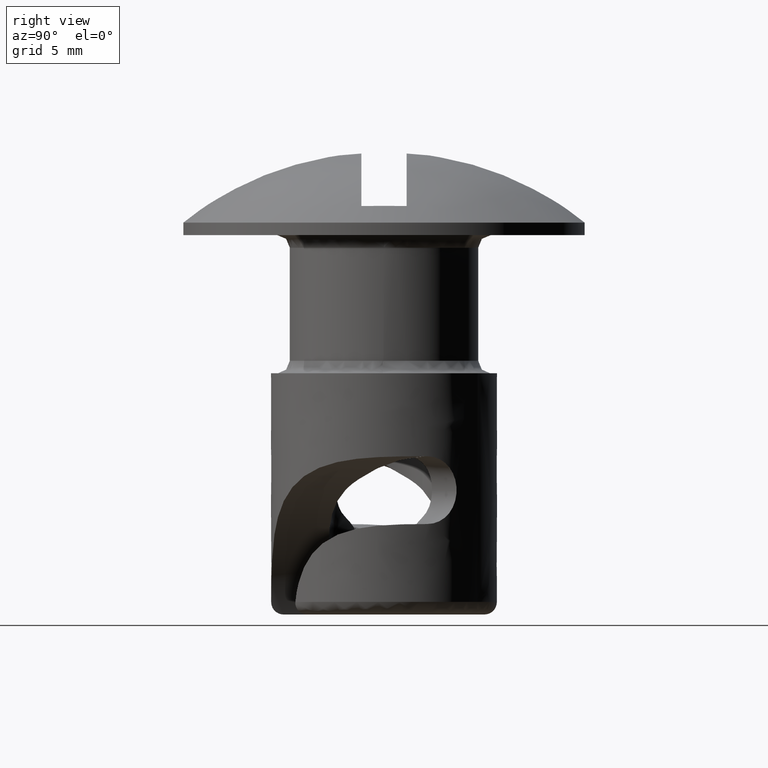
[diagram: clean part render]
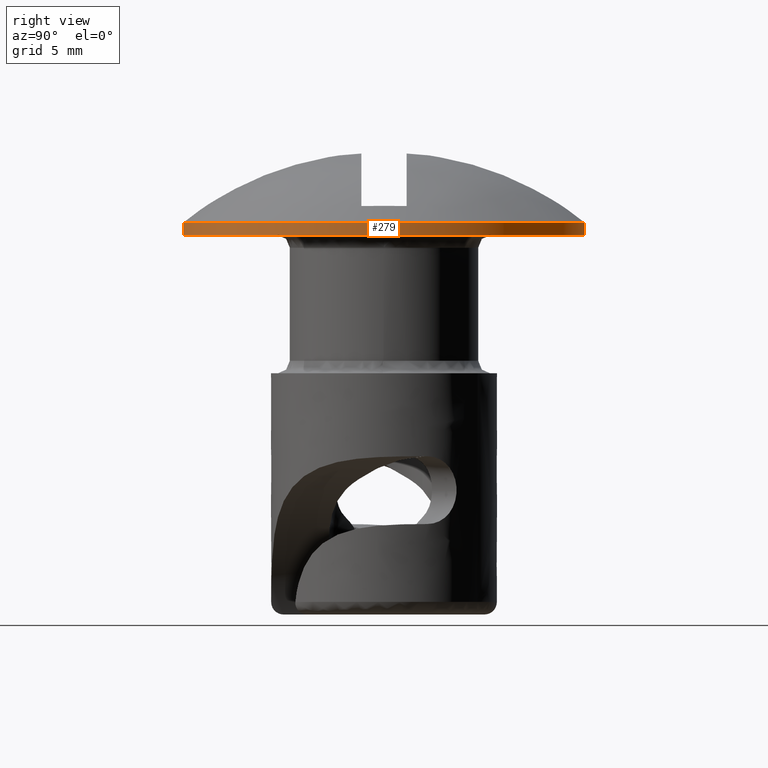
[diagram: same view with one face highlighted and labeled with its STEP entity id]
A machine part, right view. The second image highlights one B-rep face of the part: STEP entity #279.
In plain terms, the highlighted face is a freeform B-spline surface patch.
Its self-contained STEP definition (entity closure, byte-faithful):
#140=CARTESIAN_POINT('',(0.488382248304818,-7.985078758503498,0.500000000000000));
#141=VERTEX_POINT('',#140);
#159=CARTESIAN_POINT('',(8.0,0.0,0.500000000000000));
#160=VERTEX_POINT('',#159);
#161=CARTESIAN_POINT('',(8.0,0.0,0.500000000000000));
#162=CARTESIAN_POINT('',(7.999999999999930,-7.525654264779717,0.500000000000000));
#163=CARTESIAN_POINT('',(0.488382248304818,-7.985078758503498,0.500000000000000));
#171=(BOUNDED_CURVE()B_SPLINE_CURVE(2,(#161,#162,#163),.UNSPECIFIED.,.F.,.U.)B_SPLINE_CURVE_WITH_KNOTS((3,3),(0.500000000000000,0.739333093362728),.UNSPECIFIED.)CURVE()GEOMETRIC_REPRESENTATION_ITEM()RATIONAL_B_SPLINE_CURVE((1.0,0.719603839665640,0.976072322690110))REPRESENTATION_ITEM(''));
#172=EDGE_CURVE('',#160,#141,#171,.T.);
#174=CARTESIAN_POINT('',(-0.488382248304819,7.985078758503498,0.500000000000000));
#175=VERTEX_POINT('',#174);
#176=CARTESIAN_POINT('',(-0.488382248304818,7.985078758503499,0.500000000000000));
#177=CARTESIAN_POINT('',(-0.244419063894725,7.999999999997726,0.500000000000000));
#178=CARTESIAN_POINT('',(1.376262E-013,7.999999999997762,0.500000000000000));
#179=CARTESIAN_POINT('',(8.000000000000066,7.999999999998915,0.500000000000000));
#180=CARTESIAN_POINT('',(8.0,0.0,0.500000000000000));
#188=(BOUNDED_CURVE()B_SPLINE_CURVE(2,(#176,#177,#178,#179,#180),.UNSPECIFIED.,.F.,.U.)B_SPLINE_CURVE_WITH_KNOTS((3,2,3),(0.239333093362728,0.250000000000000,0.500000000000000),.UNSPECIFIED.)CURVE()GEOMETRIC_REPRESENTATION_ITEM()RATIONAL_B_SPLINE_CURVE((0.976072322690110,0.987502941520907,1.0,0.707106781186548,1.0))REPRESENTATION_ITEM(''));
#189=EDGE_CURVE('',#175,#160,#188,.T.);
#213=CARTESIAN_POINT('',(-0.488388316278856,7.985078387374934,0.512500000000000));
#214=CARTESIAN_POINT('',(7.496690071096078,8.473466703653790,0.512500000000000));
#215=CARTESIAN_POINT('',(7.985078387374934,0.488388316278856,0.512500000000000));
#216=CARTESIAN_POINT('',(8.473466703653790,-7.496690071096078,0.512500000000000));
#217=CARTESIAN_POINT('',(0.488388316278856,-7.985078387374934,0.512500000000000));
#218=CARTESIAN_POINT('',(-0.488388316278856,7.985078387374934,-0.012812500000000));
#219=CARTESIAN_POINT('',(7.496690071096078,8.473466703653790,-0.012812500000000));
#220=CARTESIAN_POINT('',(7.985078387374934,0.488388316278856,-0.012812500000000));
#221=CARTESIAN_POINT('',(8.473466703653790,-7.496690071096078,-0.012812500000000));
#222=CARTESIAN_POINT('',(0.488388316278856,-7.985078387374934,-0.012812500000000));
#230=(BOUNDED_SURFACE()B_SPLINE_SURFACE(2,1,((#213,#218),(#214,#219),(#215,#220),(#216,#221),(#217,#222)),.UNSPECIFIED.,.F.,.F.,.U.)B_SPLINE_SURFACE_WITH_KNOTS((3,2,3),(2,2),(0.0,13.254833995939039,26.509667991878072),(0.0,1.0),.UNSPECIFIED.)GEOMETRIC_REPRESENTATION_ITEM()RATIONAL_B_SPLINE_SURFACE(((1.0,1.0),(0.707106781186548,0.707106781186548),(1.0,1.0),(0.707106781186548,0.707106781186548),(1.0,1.0)))REPRESENTATION_ITEM('')SURFACE());
#231=CARTESIAN_POINT('',(-0.488382172481899,7.985078763140910,-1.278951E-013));
#232=VERTEX_POINT('',#231);
#233=CARTESIAN_POINT('',(8.0,0.0,0.0));
#234=VERTEX_POINT('',#233);
#235=CARTESIAN_POINT('',(-0.488382172481899,7.985078763140910,-1.278951E-013));
#236=CARTESIAN_POINT('',(-0.244419025876967,7.999999999997670,-1.260572E-013));
#237=CARTESIAN_POINT('',(1.398885E-013,7.999999999997707,-1.241034E-013));
#238=CARTESIAN_POINT('',(8.000000000000069,7.999999999998890,-6.015589E-014));
#239=CARTESIAN_POINT('',(8.0,0.0,0.0));
#247=(BOUNDED_CURVE()B_SPLINE_CURVE(2,(#235,#236,#237,#238,#239),.UNSPECIFIED.,.F.,.U.)B_SPLINE_CURVE_WITH_KNOTS((3,2,3),(0.239333095001159,0.250000000000000,0.500000000000000),.UNSPECIFIED.)CURVE()GEOMETRIC_REPRESENTATION_ITEM()RATIONAL_B_SPLINE_CURVE((0.976072326201585,0.987502943440449,1.0,0.707106781186548,1.0))REPRESENTATION_ITEM(''));
#248=EDGE_CURVE('',#232,#234,#247,.T.);
#249=ORIENTED_EDGE('',*,*,#248,.F.);
#250=CARTESIAN_POINT('',(-0.488382248304819,7.985078758503498,0.500000000000000));
#251=CARTESIAN_POINT('',(-0.488382172481899,7.985078763140910,-1.278951E-013));
#252=QUASI_UNIFORM_CURVE('',1,(#250,#251),.UNSPECIFIED.,.F.,.U.);
#253=EDGE_CURVE('',#175,#232,#252,.T.);
#254=ORIENTED_EDGE('',*,*,#253,.F.);
#255=ORIENTED_EDGE('',*,*,#189,.T.);
#256=ORIENTED_EDGE('',*,*,#172,.T.);
#257=CARTESIAN_POINT('',(0.488382172481897,-7.985078763140910,-1.278378E-013));
#258=VERTEX_POINT('',#257);
#259=CARTESIAN_POINT('',(0.488382248304818,-7.985078758503498,0.500000000000000));
#260=CARTESIAN_POINT('',(0.488382172481897,-7.985078763140910,-1.278378E-013));
#261=QUASI_UNIFORM_CURVE('',1,(#259,#260),.UNSPECIFIED.,.F.,.U.);
#262=EDGE_CURVE('',#141,#258,#261,.T.);
#263=ORIENTED_EDGE('',*,*,#262,.T.);
#264=CARTESIAN_POINT('',(8.0,0.0,0.0));
#265=CARTESIAN_POINT('',(7.999999999999928,-7.525654336373638,-6.391892E-014));
#266=CARTESIAN_POINT('',(0.488382172481897,-7.985078763140910,-1.278378E-013));
#274=(BOUNDED_CURVE()B_SPLINE_CURVE(2,(#264,#265,#266),.UNSPECIFIED.,.F.,.U.)B_SPLINE_CURVE_WITH_KNOTS((3,3),(0.500000000000000,0.739333095001159),.UNSPECIFIED.)CURVE()GEOMETRIC_REPRESENTATION_ITEM()RATIONAL_B_SPLINE_CURVE((1.0,0.719603837746098,0.976072326201585))REPRESENTATION_ITEM(''));
#275=EDGE_CURVE('',#234,#258,#274,.T.);
#276=ORIENTED_EDGE('',*,*,#275,.F.);
#277=EDGE_LOOP('',(#249,#254,#255,#256,#263,#276));
#278=FACE_OUTER_BOUND('',#277,.T.);
#279=ADVANCED_FACE('',(#278),#230,.T.);